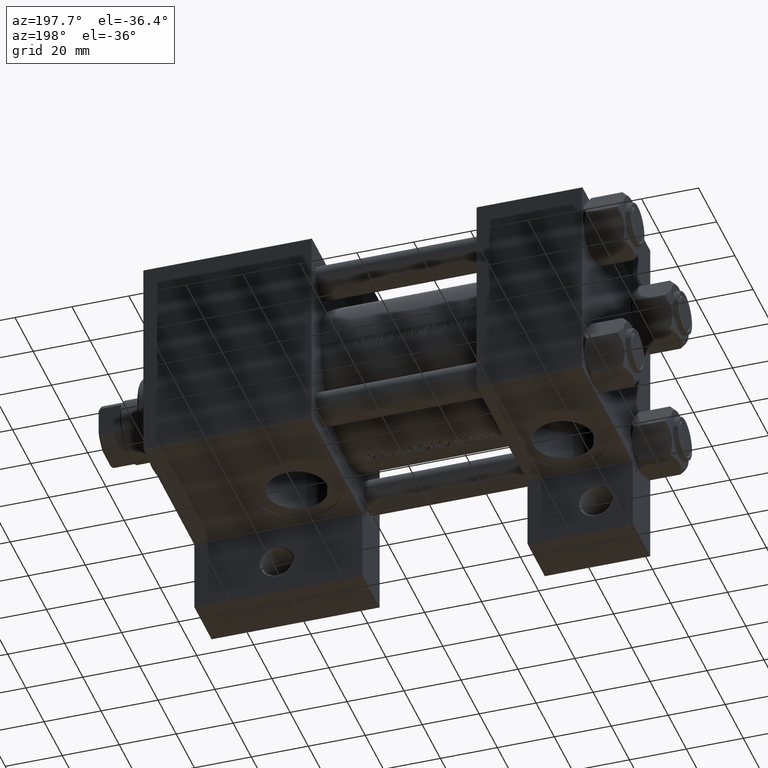
[diagram: clean part render]
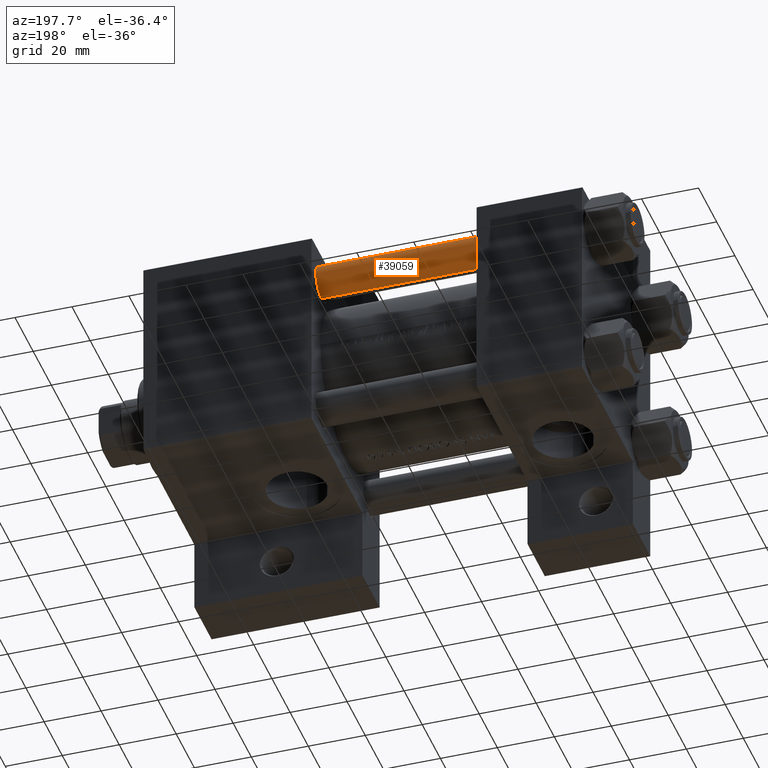
[diagram: same view with one face highlighted and labeled with its STEP entity id]
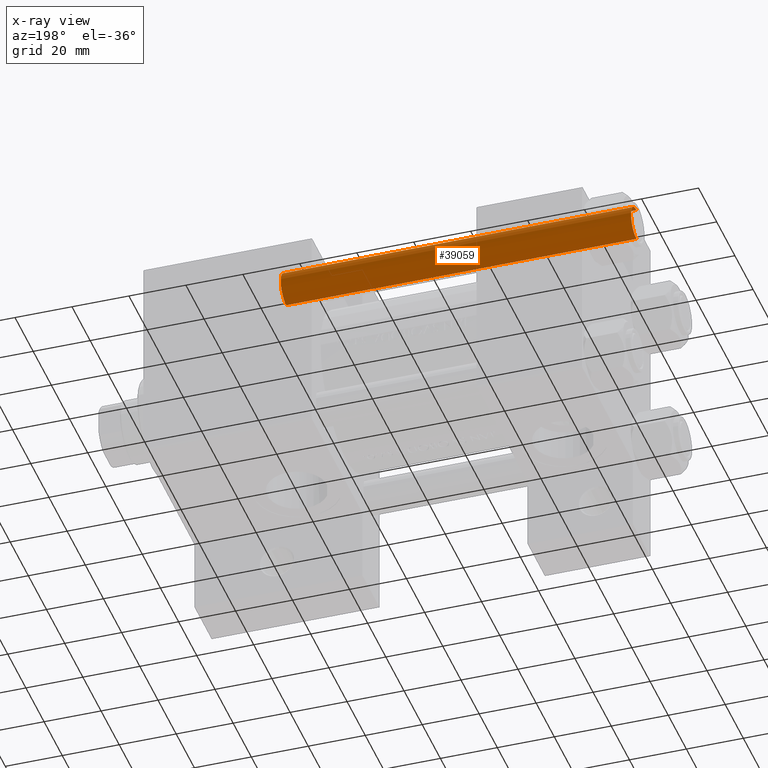
[diagram: x-ray of the same camera — body ghosted, the highlighted face saturated]
A machine part, auxiliary view. The second image highlights one B-rep face of the part: STEP entity #39059.
The next image is the same camera in x-ray: the body ghosted, the highlighted face saturated — about 0% of this face is hidden behind the body in this view.
In plain terms, the highlighted cylindrical surface (edge-blend (fillet) strip) has radius 6 mm, axis along (-1, -0, -0).
Its self-contained STEP definition (entity closure, byte-faithful):
#187 = ORIENTED_EDGE ( 'NONE', *, *, #22386, .T. ) ;
#1018 = CARTESIAN_POINT ( 'NONE',  ( 0.000000000000000000, 0.000000000000000000, 0.4999999999999865663 ) ) ;
#1060 = VECTOR ( 'NONE', #20667, 1000.000000000000000 ) ;
#5767 = AXIS2_PLACEMENT_3D ( 'NONE', #1018, #20910, #42548 ) ;
#6231 = CARTESIAN_POINT ( 'NONE',  ( 6.000000000000000888, 7.347880794884120722E-16, 124.0000000000000000 ) ) ;
#6263 = CARTESIAN_POINT ( 'NONE',  ( -6.000000000000000888, 0.000000000000000000, 124.0000000000000000 ) ) ;
#6538 = FACE_OUTER_BOUND ( 'NONE', #36742, .T. ) ;
#10222 = AXIS2_PLACEMENT_3D ( 'NONE', #30160, #42807, #33784 ) ;
#10651 = VERTEX_POINT ( 'NONE', #33256 ) ;
#11935 = VERTEX_POINT ( 'NONE', #39264 ) ;
#13709 = CARTESIAN_POINT ( 'NONE',  ( -6.000000000000000888, 0.000000000000000000, 0.4999999999999865663 ) ) ;
#14003 = DIRECTION ( 'NONE',  ( -0.000000000000000000, -0.000000000000000000, -1.000000000000000000 ) ) ;
#15945 = CARTESIAN_POINT ( 'NONE',  ( -6.000000000000000888, 0.000000000000000000, 123.5000000000000426 ) ) ;
#17414 = EDGE_CURVE ( 'NONE', #30751, #10651, #42441, .T. ) ;
#17610 = CARTESIAN_POINT ( 'NONE',  ( 0.000000000000000000, 0.000000000000000000, 124.0000000000000000 ) ) ;
#19060 = EDGE_CURVE ( 'NONE', #10651, #11935, #35585, .T. ) ;
#20667 = DIRECTION ( 'NONE',  ( -0.000000000000000000, -0.000000000000000000, -1.000000000000000000 ) ) ;
#20734 = DIRECTION ( 'NONE',  ( -1.000000000000000000, 0.000000000000000000, 0.000000000000000000 ) ) ;
#20910 = DIRECTION ( 'NONE',  ( -0.000000000000000000, -0.000000000000000000, 1.000000000000000000 ) ) ;
#22386 = EDGE_CURVE ( 'NONE', #11935, #31408, #26501, .T. ) ;
#26501 = CIRCLE ( 'NONE', #5767, 6.000000000000000888 ) ;
#27236 = ORIENTED_EDGE ( 'NONE', *, *, #19060, .T. ) ;
#27706 = CYLINDRICAL_SURFACE ( 'NONE', #41388, 6.000000000000000888 ) ;
#30160 = CARTESIAN_POINT ( 'NONE',  ( 0.000000000000000000, 0.000000000000000000, 123.5000000000000426 ) ) ;
#30751 = VERTEX_POINT ( 'NONE', #15945 ) ;
#31408 = VERTEX_POINT ( 'NONE', #13709 ) ;
#33256 = CARTESIAN_POINT ( 'NONE',  ( 6.000000000000000888, 7.347880794884120722E-16, 123.5000000000000426 ) ) ;
#33784 = DIRECTION ( 'NONE',  ( 1.000000000000000000, 0.000000000000000000, 0.000000000000000000 ) ) ;
#35379 = LINE ( 'NONE', #6263, #45296 ) ;
#35585 = LINE ( 'NONE', #6231, #1060 ) ;
#36742 = EDGE_LOOP ( 'NONE', ( #46000, #27236, #187, #40880 ) ) ;
#39059 = ADVANCED_FACE ( 'NONE', ( #6538 ), #27706, .T. ) ;
#39264 = CARTESIAN_POINT ( 'NONE',  ( 6.000000000000000888, 7.347880794884120722E-16, 0.4999999999999865663 ) ) ;
#40880 = ORIENTED_EDGE ( 'NONE', *, *, #41091, .F. ) ;
#41091 = EDGE_CURVE ( 'NONE', #30751, #31408, #35379, .T. ) ;
#41388 = AXIS2_PLACEMENT_3D ( 'NONE', #17610, #14003, #20734 ) ;
#42441 = CIRCLE ( 'NONE', #10222, 6.000000000000000888 ) ;
#42548 = DIRECTION ( 'NONE',  ( 1.000000000000000000, 0.000000000000000000, 0.000000000000000000 ) ) ;
#42807 = DIRECTION ( 'NONE',  ( 0.000000000000000000, 0.000000000000000000, -1.000000000000000000 ) ) ;
#42810 = DIRECTION ( 'NONE',  ( -0.000000000000000000, -0.000000000000000000, -1.000000000000000000 ) ) ;
#45296 = VECTOR ( 'NONE', #42810, 1000.000000000000000 ) ;
#46000 = ORIENTED_EDGE ( 'NONE', *, *, #17414, .T. ) ;